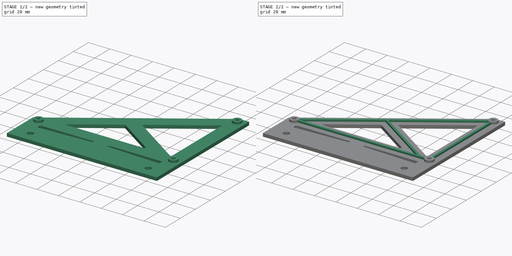
[diagram: build sequence overview — one tinted view per stage of 2, left to right]
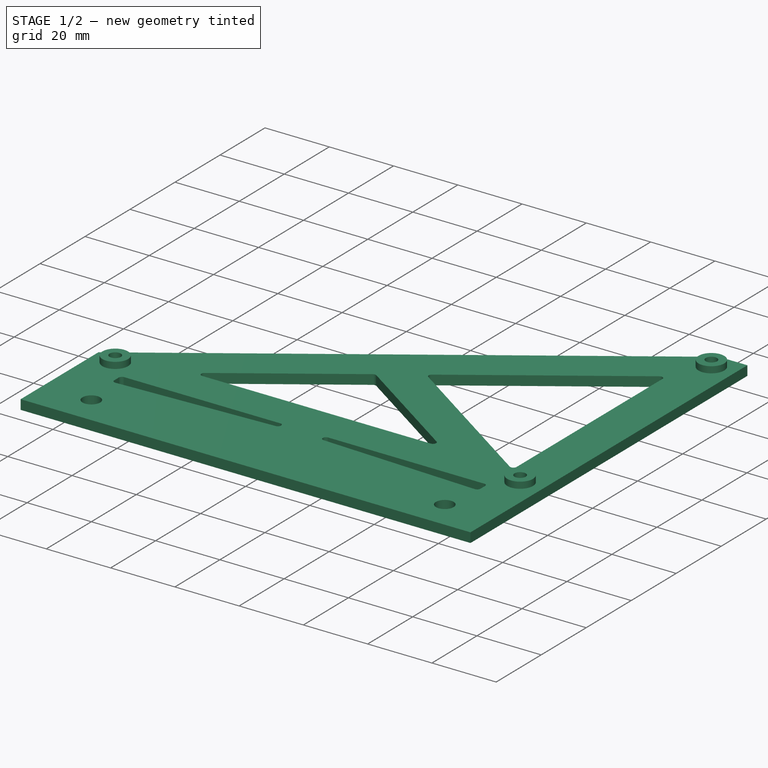
[diagram: stage 1 of 2 — iso view after this stage's code; geometry added in this stage tinted green]
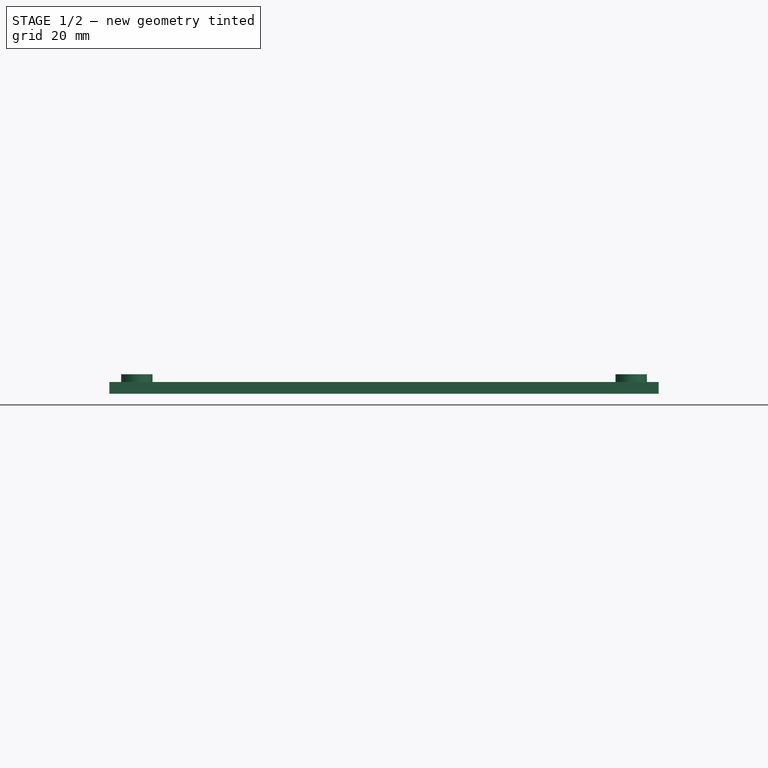
[diagram: stage 1 of 2 — front view after this stage's code; geometry added in this stage tinted green]
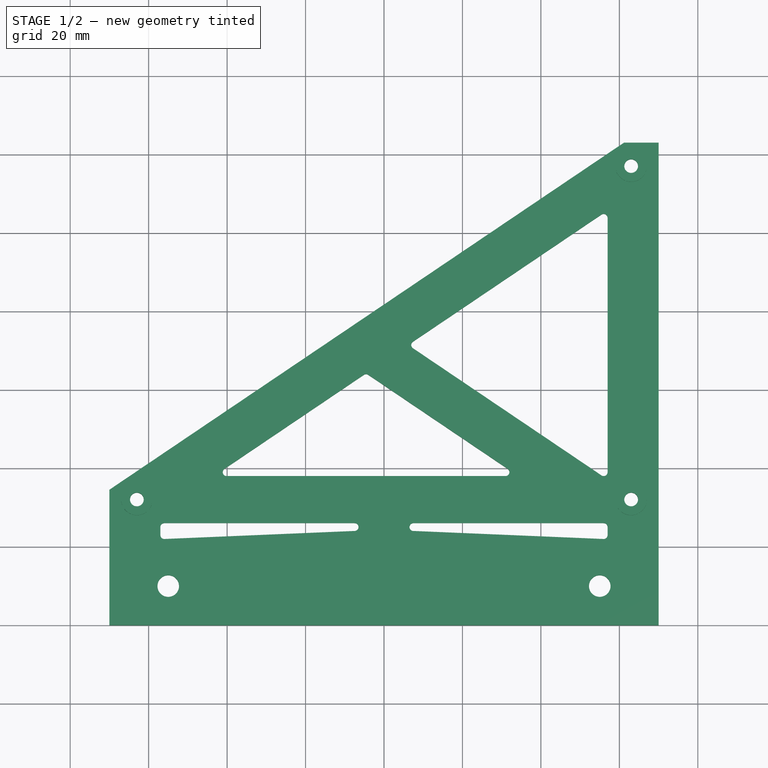
[diagram: stage 1 of 2 — top view after this stage's code; geometry added in this stage tinted green]
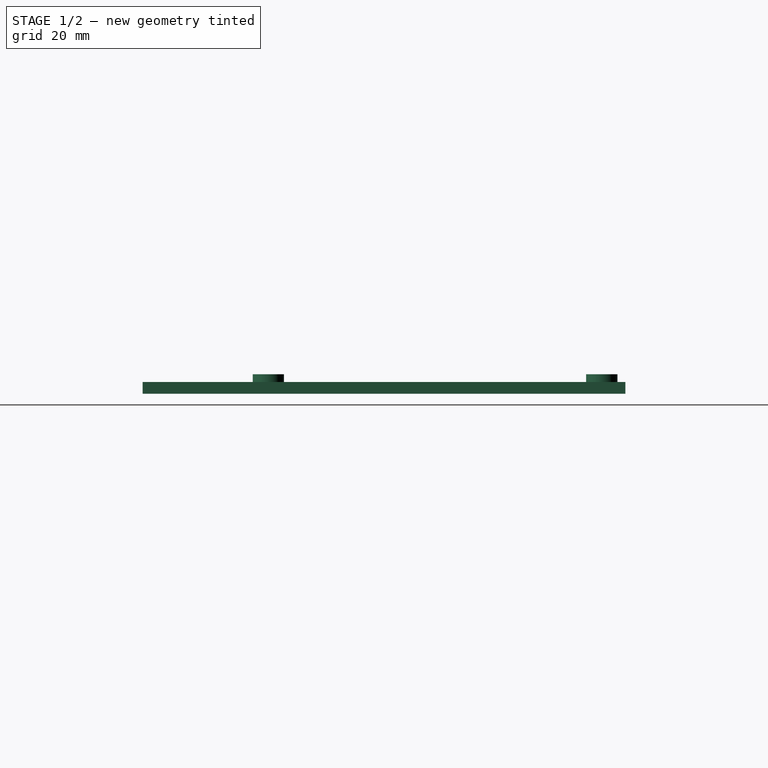
[diagram: stage 1 of 2 — right view after this stage's code; geometry added in this stage tinted green]
FCSTD DOCUMENT  (FreeCAD 0.18R4 (GitTag))
Label: _Electr_PSU-Mount
License: All rights reserved
LicenseURL: http://en.wikipedia.org/wiki/All_rights_reserved
objects: Sketcher::SketchObject×3, PartDesign::Pad×3, PartDesign::Body×1
note: 10 computed .brp shape members not serialized (recipe doc carries the construction recipe); baked Part::Feature solids carry a one-line shape summary decoded from their .brp

FEATURE [Sketcher::SketchObject] Sketch
  MapMode = 5
  Support = -> [XY_Plane066]
  expr: Constraints[106] = Constraints[71] / 2
  expr: Constraints[103] = Constraints[71]
  expr: Constraints[99] = Constraints[71] / 2
  sketch-geometry (43):
    g0: LineSegment StartX=-70 StartY=14.5654 StartZ=0 EndX=-70 EndY=-20 EndZ=0
    g1: LineSegment StartX=-70 StartY=-20 StartZ=0 EndX=70 EndY=-20 EndZ=0
    g2: LineSegment StartX=70 StartY=-20 StartZ=0 EndX=70 EndY=103.05 EndZ=0
    g3: LineSegment StartX=61.1654 StartY=103.05 StartZ=0 EndX=-70 EndY=14.5654 EndZ=0
    g4: Circle CenterX=-63 CenterY=12.05 CenterZ=0 NormalX=0 NormalY=0 NormalZ=1 AngleXU=0 Radius=1.75
    g5: Circle CenterX=-55 CenterY=-10 CenterZ=0 NormalX=0 NormalY=0 NormalZ=1 AngleXU=0 Radius=2.75
    g6: Circle CenterX=55 CenterY=-10 CenterZ=0 NormalX=0 NormalY=0 NormalZ=1 AngleXU=0 Radius=2.75
    g7: Circle CenterX=63 CenterY=12.05 CenterZ=0 NormalX=0 NormalY=0 NormalZ=1 AngleXU=0 Radius=1.75
    g8: Circle CenterX=63 CenterY=97.05 CenterZ=0 NormalX=0 NormalY=0 NormalZ=1 AngleXU=0 Radius=1.75
    g9: LineSegment StartX=-56 StartY=6.05 StartZ=0 EndX=-7.5 EndY=6.05 EndZ=0
    g10: LineSegment StartX=-7.45777 StartY=4.05089 StartZ=0 EndX=-55.9578 EndY=2.00089 EndZ=0
    g11: LineSegment StartX=-57 StartY=3 StartZ=0 EndX=-57 EndY=5.05 EndZ=0
    g12: LineSegment StartX=56 StartY=6.05 StartZ=0 EndX=7.5 EndY=6.05 EndZ=0
    g13: LineSegment StartX=7.45777 StartY=4.05089 StartZ=0 EndX=55.9578 EndY=2.00089 EndZ=0
    g14: LineSegment StartX=57 StartY=3 StartZ=0 EndX=57 EndY=5.05 EndZ=0
    g15: ArcOfCircle CenterX=-56 CenterY=5.05 CenterZ=0 NormalX=0 NormalY=0 NormalZ=1 AngleXU=0 Radius=1 StartAngle=1.5708 EndAngle=3.14159
    g16: ArcOfCircle CenterX=-56 CenterY=3 CenterZ=0 NormalX=0 NormalY=0 NormalZ=1 AngleXU=0 Radius=1 StartAngle=3.14159 EndAngle=4.75463
    g17: ArcOfCircle CenterX=-7.5 CenterY=5.05 CenterZ=0 NormalX=0 NormalY=0 NormalZ=1 AngleXU=0 Radius=1 StartAngle=4.75463 EndAngle=7.85398
    g18: ArcOfCircle CenterX=7.5 CenterY=5.05 CenterZ=0 NormalX=0 NormalY=0 NormalZ=1 AngleXU=0 Radius=1 StartAngle=1.5708 EndAngle=4.67015
    g19: ArcOfCircle CenterX=56 CenterY=5.05 CenterZ=0 NormalX=0 NormalY=0 NormalZ=1 AngleXU=0 Radius=1 StartAngle=0 EndAngle=1.5708
    g20: ArcOfCircle CenterX=56 CenterY=3 CenterZ=0 NormalX=0 NormalY=0 NormalZ=1 AngleXU=0 Radius=1 StartAngle=4.67015 EndAngle=6.28319
    g21: LineSegment [constr] StartX=-70 StartY=2 StartZ=0 EndX=70 EndY=2 EndZ=0
    g22: LineSegment [constr] StartX=-63 StartY=12.05 StartZ=0 EndX=63 EndY=12.05 EndZ=0
    g23: LineSegment [constr] StartX=-63 StartY=12.05 StartZ=0 EndX=63 EndY=97.05 EndZ=0
    g24: LineSegment [constr] StartX=63 StartY=97.05 StartZ=0 EndX=63 EndY=12.05 EndZ=0
    g25: LineSegment StartX=61.1654 StartY=103.05 StartZ=0 EndX=70 EndY=103.05 EndZ=0
    g26: LineSegment StartX=55.4408 StartY=84.7129 StartZ=0 EndX=7.38741 EndY=52.2959 EndZ=0
    g27: LineSegment StartX=7.38741 StartY=50.6379 StartZ=0 EndX=55.4408 EndY=18.221 EndZ=0
    g28: LineSegment StartX=57 StartY=19.05 StartZ=0 EndX=57 EndY=83.8839 EndZ=0
    g29: LineSegment StartX=-40.6659 StartY=19.879 StartZ=0 EndX=-5.12943 EndY=43.852 EndZ=0
    g30: LineSegment StartX=-4.01094 StartY=43.852 StartZ=0 EndX=31.5256 EndY=19.879 EndZ=0
    g31: LineSegment StartX=30.9663 StartY=18.05 StartZ=0 EndX=-40.1067 EndY=18.05 EndZ=0
    g32: LineSegment [constr] StartX=-5.12943 StartY=43.852 StartZ=0 EndX=7.38741 EndY=52.2959 EndZ=0
    g33: LineSegment [constr] StartX=-3.35548 StartY=59.524 StartZ=0 EndX=3.35548 EndY=49.576 EndZ=0
    g34: GeomPoint X=0 Y=54.55 Z=0
    g35: ArcOfCircle CenterX=56 CenterY=83.8839 CenterZ=0 NormalX=0 NormalY=0 NormalZ=1 AngleXU=0 Radius=1 StartAngle=-4.4e-15 EndAngle=2.16427
    g36: ArcOfCircle CenterX=7.94665 CenterY=51.4669 CenterZ=0 NormalX=0 NormalY=0 NormalZ=1 AngleXU=0 Radius=1 StartAngle=2.16427 EndAngle=4.11891
    g37: ArcOfCircle CenterX=56 CenterY=19.05 CenterZ=0 NormalX=0 NormalY=0 NormalZ=1 AngleXU=0 Radius=1 StartAngle=4.11891 EndAngle=6.28319
    g38: ArcOfCircle CenterX=30.9663 CenterY=19.05 CenterZ=0 NormalX=0 NormalY=0 NormalZ=1 AngleXU=0 Radius=1 StartAngle=4.71239 EndAngle=7.2605
    g39: ArcOfCircle CenterX=-40.1067 CenterY=19.05 CenterZ=0 NormalX=0 NormalY=0 NormalZ=1 AngleXU=0 Radius=1 StartAngle=2.16427 EndAngle=4.71239
    g40: ArcOfCircle CenterX=-4.57018 CenterY=43.023 CenterZ=0 NormalX=0 NormalY=0 NormalZ=1 AngleXU=0 Radius=1 StartAngle=0.977319 EndAngle=2.16427
    g41: LineSegment [constr] StartX=57 StartY=51.4669 StartZ=0 EndX=63 EndY=51.4669 EndZ=0
    g42: LineSegment [constr] StartX=31.5256 StartY=19.879 StartZ=0 EndX=38.2365 EndY=29.827 EndZ=0
  constraints (109):
    c: Vertical(g0)
    c: Coincident(g0,g1)
    c: Coincident(g1,g2)
    c: Coincident(g3,g0)
    c: DistanceX(g1,g1) = 140
    c: Symmetric(g1,g0,g-2)
    c: DistanceY(g7,g8) = 85
    c: Horizontal(g4,g7)
    c: DistanceX(g4,g7) = 126
    c: Equal(g4,g7)
    c: Equal(g7,g8)
    c: Diameter(g8) = 3.5
    c: Symmetric(g5,g6,g-2)
    c: DistanceX(g5,g6) = 110
    c: Vertical(g7,g8)
    c: DistanceY(g0,g-1) = 20
    c: Horizontal(g9)
    c: Vertical(g11)
    c: Horizontal(g9,g12)
    c: Horizontal(g12)
    c: Vertical(g14)
    c: Tangent(g11,g15) = 1.5708
    c: Tangent(g9,g15) = 1.5708
    c: Tangent(g11,g16) = 1.5708
    c: Tangent(g10,g16) = 1.5708
    c: Tangent(g10,g17) = 1.5708
    c: Tangent(g9,g17) = 1.5708
    c: Tangent(g13,g18) = -1.5708
    c: Tangent(g12,g18) = -1.5708
    c: Tangent(g12,g19) = -1.5708
    c: Tangent(g14,g19) = -1.5708
    c: Tangent(g14,g20) = -1.5708
    c: Tangent(g13,g20) = -1.5708
    c: Equal(g19,g20)
    c: Equal(g20,g18)
    c: PointOnObject(g21,g0)
    c: PointOnObject(g21,g2)
    c: Horizontal(g21)
    c: DistanceY(g-1,g21) = 2
    c: Symmetric(g17,g18,g-2)
    c: Symmetric(g15,g19,g-2)
    c: Symmetric(g16,g20,g-2)
    c: Tangent(g16,g21)
    c: DistanceX(g17,g18) = 15
    c: Diameter(g5) = 5.5
    c: Equal(g5,g6)
    c: Vertical(g2)
    c: DistanceY(g21,g7) = 10.05
    c: Coincident(g22,g4)
    c: Coincident(g22,g7)
    c: Coincident(g23,g4)
    c: Coincident(g23,g8)
    c: Coincident(g24,g8)
    c: Coincident(g24,g7)
    c: Coincident(g25,g3)
    c: Coincident(g25,g2)
    c: Horizontal(g25)
    c: Parallel(g23,g3)
    c: DistanceY(g0,g5) = 10
    c: DistanceY(g9,g4) = 6
    c: DistanceX(g8,g2) = 7
    c: DistanceY(g8,g2) = 6
    c: Radius(g18) = 1
    c: Vertical(g28)
    c: Horizontal(g31)
    c: Parallel(g3,g29)
    c: PointOnObject(g33,g3)
    c: PointOnObject(g33,g32)
    c: PointOnObject(g34,g33)
    c: PointOnObject(g34,g-2)
    c: PointOnObject(g34,g23)
    c: Distance(g33) = 12
    c: Tangent(g26,g35) = -1.5708
    c: Tangent(g28,g35) = -1.5708
    c: Tangent(g26,g36) = -1.5708
    c: Tangent(g27,g36) = -1.5708
    c: Tangent(g27,g37) = -1.5708
    c: Tangent(g28,g37) = -1.5708
    c: Tangent(g30,g38) = 1.5708
    c: Tangent(g31,g38) = 1.5708
    c: Tangent(g31,g39) = 1.5708
    c: Tangent(g29,g39) = 1.5708
    c: Tangent(g29,g40) = 1.5708
    c: Tangent(g30,g40) = 1.5708
    c: Coincident(g32,g26)
    c: Coincident(g32,g29)
    c: Equal(g40,g39)
    c: Equal(g39,g38)
    c: Equal(g38,g37)
    c: Equal(g37,g36)
    c: Equal(g36,g35)
    c: Equal(g35,g19)
    c: Tangent(g26,g32)
    c: Tangent(g32,g29)
    c: Symmetric(g33,g33,g23)
    c: PointOnObject(g41,g28)
    c: PointOnObject(g41,g24)
    c: Horizontal(g41)
    c: Horizontal(g41,g36)
    c: DistanceX(g41,g41) = 6
    c: Coincident(g42,g30)
    c: PointOnObject(g42,g27)
    c: Perpendicular(g42,g27)
    c: Distance(g42) = 12
    c: Equal(g27,g26)
    c: Parallel(g27,g30)
    c: DistanceY(g4,g31) = 6
    c: Tangent(g37,g31)
    c: Vertical(g19,g37)
FEATURE [PartDesign::Pad] Pad
  Length = 3
  Length2 = 100
  Profile = -> Sketch
  Type = 0
FEATURE [Sketcher::SketchObject] Sketch001
  AttachmentOffset = pos=(0,0,3) rot=(0,0,1;0rad)
  ExternalGeometry = -> [Sketch]
  MapMode = 5
  Placement = pos=(0,0,3) rot=(0,0,1;0rad)
  Support = -> [XY_Plane066]
  expr: AttachmentOffset.Base.z = Pad.Length
  sketch-geometry (6):
    g0: Circle CenterX=-63 CenterY=12.05 CenterZ=0 NormalX=0 NormalY=0 NormalZ=1 AngleXU=0 Radius=4
    g1: Circle CenterX=63 CenterY=12.05 CenterZ=0 NormalX=0 NormalY=0 NormalZ=1 AngleXU=0 Radius=4
    g2: Circle CenterX=63 CenterY=97.05 CenterZ=0 NormalX=0 NormalY=0 NormalZ=1 AngleXU=0 Radius=4
    g3: Circle CenterX=-63 CenterY=12.05 CenterZ=0 NormalX=0 NormalY=0 NormalZ=1 AngleXU=0 Radius=1.75
    g4: Circle CenterX=63 CenterY=97.05 CenterZ=0 NormalX=0 NormalY=0 NormalZ=1 AngleXU=0 Radius=1.75
    g5: Circle CenterX=63 CenterY=12.05 CenterZ=0 NormalX=0 NormalY=0 NormalZ=1 AngleXU=0 Radius=1.75
  constraints (12):
    c: Coincident(g0,g-3)
    c: Coincident(g1,g-4)
    c: Coincident(g2,g-5)
    c: Equal(g2,g1)
    c: Equal(g1,g0)
    c: Diameter(g2) = 8
    c: Coincident(g3,g0)
    c: Coincident(g4,g2)
    c: Coincident(g5,g1)
    c: Equal(g-4,g5)
    c: Equal(g3,g-3)
    c: Equal(g4,g-5)
FEATURE [PartDesign::Pad] Pad001
  BaseFeature = -> Pad
  Length = 2
  Length2 = 100
  Profile = -> Sketch001
  Type = 0
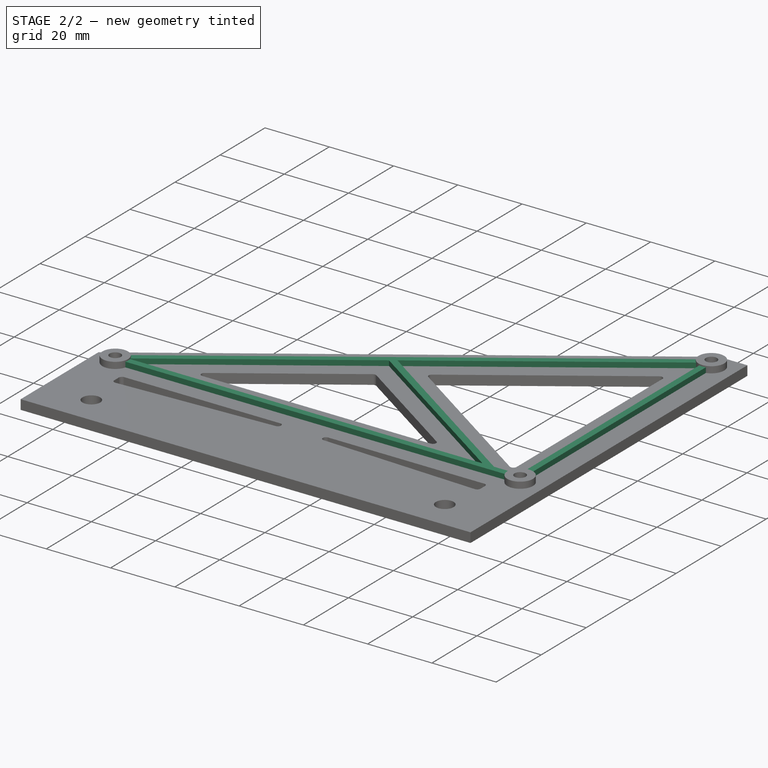
[diagram: stage 2 of 2 — iso view after this stage's code; geometry added in this stage tinted green]
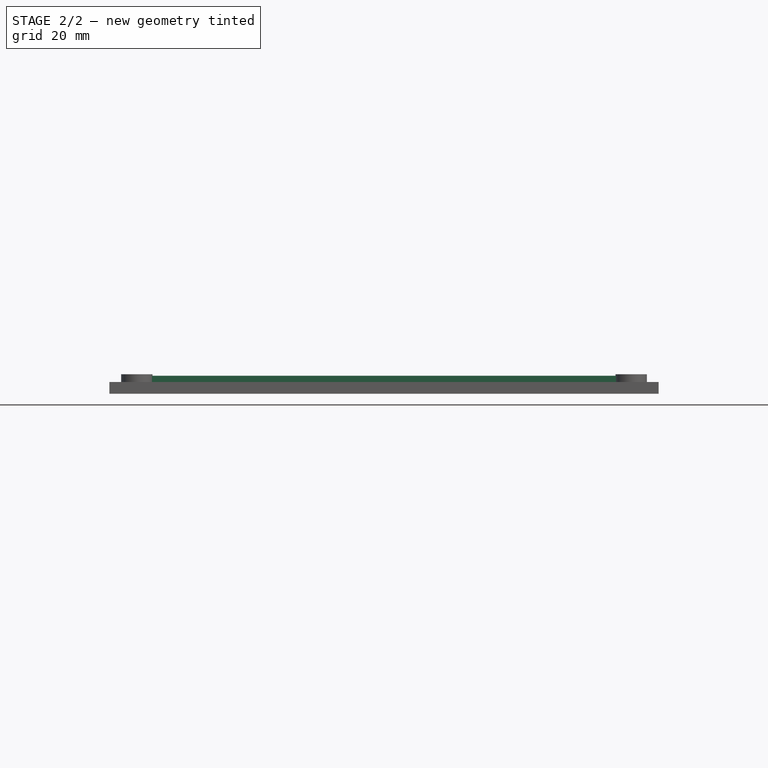
[diagram: stage 2 of 2 — front view after this stage's code; geometry added in this stage tinted green]
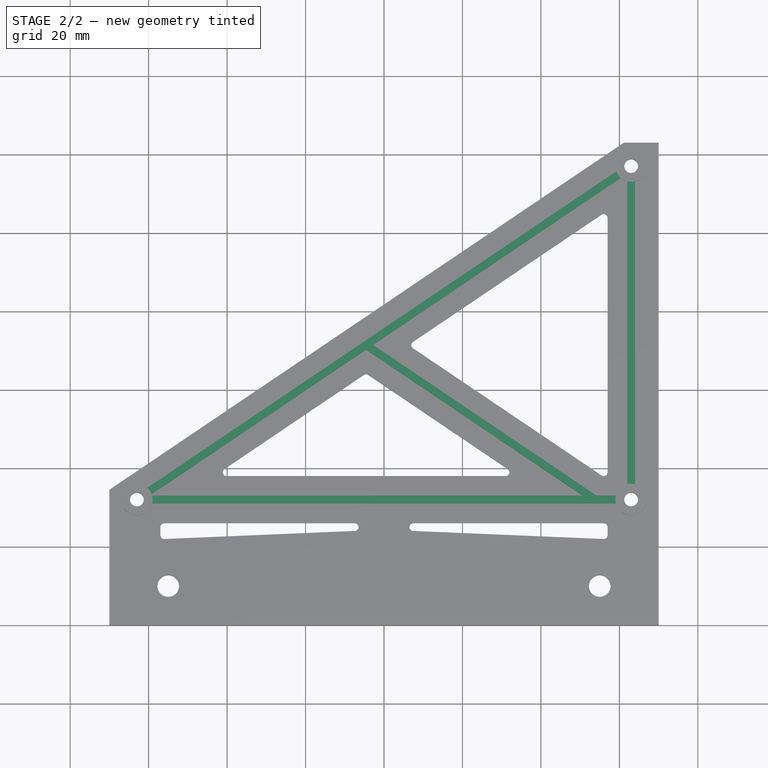
[diagram: stage 2 of 2 — top view after this stage's code; geometry added in this stage tinted green]
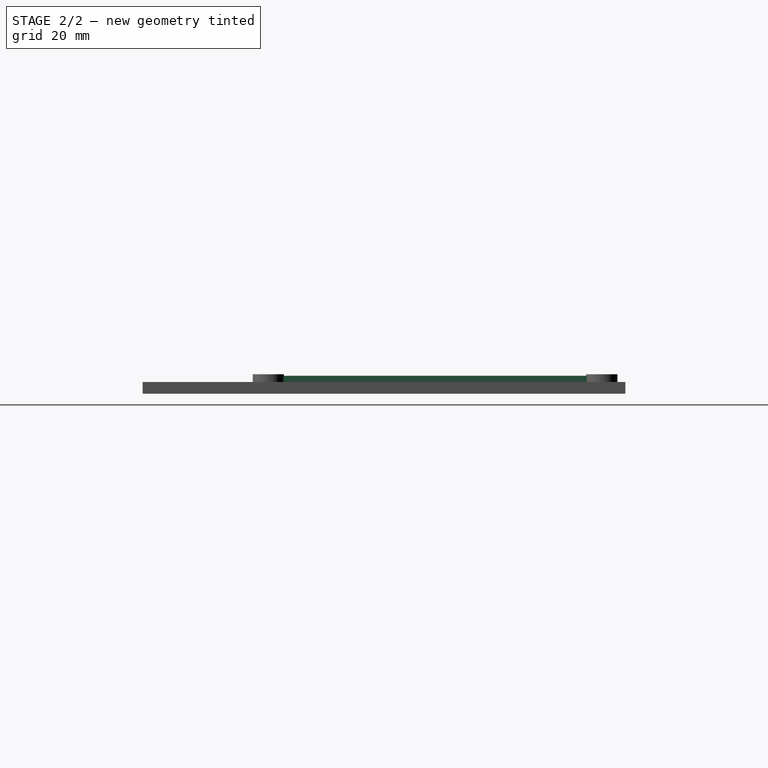
[diagram: stage 2 of 2 — right view after this stage's code; geometry added in this stage tinted green]
FEATURE [Sketcher::SketchObject] Sketch002
  AttachmentOffset = pos=(0,0,3) rot=(0,0,1;0rad)
  ExternalGeometry = -> [Sketch]
  MapMode = 5
  Placement = pos=(0,0,3) rot=(0,0,1;0rad)
  Support = -> [XY_Plane066]
  expr: AttachmentOffset.Base.z = Pad.Length
  expr: Constraints[74] = Constraints[35]
  expr: Constraints[55] = Constraints[35]
  expr: Constraints[41] = Constraints[36]
  expr: Constraints[22] = Sketch001.Constraints[5]
  expr: Constraints[40] = Constraints[36]
  expr: Constraints[36] = Constraints[35]
  sketch-geometry (28):
    g0: LineSegment [constr] StartX=63 StartY=97.05 StartZ=0 EndX=-63 EndY=12.05 EndZ=0
    g1: LineSegment [constr] StartX=63 StartY=12.05 StartZ=0 EndX=63 EndY=97.05 EndZ=0
    g2: LineSegment [constr] StartX=63 StartY=12.05 StartZ=0 EndX=-63 EndY=12.05 EndZ=0
    g3: LineSegment [constr] StartX=-4.57018 StartY=51.4669 StartZ=0 EndX=53.8596 EndY=12.05 EndZ=0
    g4: LineSegment [constr] StartX=31.5256 StartY=19.879 StartZ=0 EndX=38.2365 EndY=29.827 EndZ=0
    g5: LineSegment StartX=60.3485 StartY=94.055 StartZ=0 EndX=-2.78206 EndY=51.4669 EndZ=0
    g6: LineSegment StartX=-2.78206 StartY=51.4669 StartZ=0 EndX=54.1654 EndY=13.05 EndZ=0
    g7: LineSegment StartX=54.1654 StartY=13.05 StartZ=0 EndX=59.127 EndY=13.05 EndZ=0
    g8: LineSegment StartX=62 StartY=15.923 StartZ=0 EndX=62 EndY=93.177 EndZ=0
    g9: LineSegment StartX=64 StartY=94.5364 StartZ=0 EndX=64 EndY=15.5249 EndZ=0
    g10: Circle [constr] CenterX=63 CenterY=12.05 CenterZ=0 NormalX=0 NormalY=0 NormalZ=1 AngleXU=0 Radius=4
    g11: Circle [constr] CenterX=-63 CenterY=12.05 CenterZ=0 NormalX=0 NormalY=0 NormalZ=1 AngleXU=0 Radius=4
    g12: Circle [constr] CenterX=63 CenterY=97.05 CenterZ=0 NormalX=0 NormalY=0 NormalZ=1 AngleXU=0 Radius=4
    g13: LineSegment StartX=60.357 StartY=96.4733 StartZ=0 EndX=-61.7887 EndY=14.0734 EndZ=0
    g14: LineSegment StartX=-60.8643 StartY=11.05 StartZ=0 EndX=59.5251 EndY=11.05 EndZ=0
    g15: LineSegment StartX=60.357 StartY=96.4733 StartZ=0 EndX=64 EndY=94.5364 EndZ=0
    g16: LineSegment StartX=-61.7887 StartY=14.0734 StartZ=0 EndX=-60.8643 EndY=11.05 EndZ=0
    g17: LineSegment StartX=59.5251 StartY=11.05 StartZ=0 EndX=64 EndY=15.5249 EndZ=0
    g18: LineSegment StartX=-4.57018 StartY=50.2607 StartZ=0 EndX=-59.23 EndY=13.387 EndZ=0
    g19: LineSegment StartX=-59.127 StartY=13.05 StartZ=0 EndX=50.5892 EndY=13.05 EndZ=0
    g20: LineSegment StartX=50.5892 StartY=13.05 StartZ=0 EndX=-4.57018 EndY=50.2607 EndZ=0
    g21: LineSegment StartX=62 StartY=15.923 StartZ=0 EndX=59.127 EndY=13.05 EndZ=0
    g22: LineSegment StartX=60.3485 StartY=94.055 StartZ=0 EndX=62 EndY=93.177 EndZ=0
    g23: LineSegment [constr] StartX=0.559247 StartY=54.9273 StartZ=0 EndX=0 EndY=55.7563 EndZ=0
    g24: LineSegment [constr] StartX=0.559247 StartY=54.9273 StartZ=0 EndX=1.11849 EndY=54.0983 EndZ=0
    g25: LineSegment StartX=-59.23 StartY=13.387 StartZ=0 EndX=-59.127 EndY=13.05 EndZ=0
    g26: LineSegment [constr] StartX=-2.78206 StartY=51.4669 StartZ=0 EndX=-3.34131 EndY=50.6379 EndZ=0
    g27: LineSegment [constr] StartX=-3.34131 StartY=50.6379 StartZ=0 EndX=-3.90056 EndY=49.8089 EndZ=0
  constraints (79):
    c: Coincident(g0,g-3)
    c: Coincident(g0,g-5)
    c: Coincident(g1,g0)
    c: Vertical(g1)
    c: Coincident(g2,g1)
    c: Coincident(g2,g0)
    c: Horizontal(g2)
    c: PointOnObject(g3,g0)
    c: PointOnObject(g3,g2)
    c: Coincident(g4,g-6)
    c: PointOnObject(g4,g-7)
    c: Symmetric(g4,g4,g3)
    c: Coincident(g5,g6)
    c: Coincident(g6,g7)
    c: Horizontal(g7)
    c: Vertical(g8)
    c: Vertical(g9)
    c: Coincident(g10,g1)
    c: Coincident(g11,g0)
    c: Coincident(g12,g0)
    c: Equal(g11,g10)
    c: Equal(g10,g12)
    c: Diameter(g12) = 8
    c: Horizontal(g14)
    c: Coincident(g15,g9)
    c: Coincident(g16,g13)
    c: Coincident(g16,g14)
    c: Coincident(g17,g14)
    c: Coincident(g17,g9)
    c: Coincident(g13,g15)
    c: Tangent(g17,g-4)
    c: Tangent(g16,g-5)
    c: Horizontal(g19)
    c: Coincident(g19,g20)
    c: Coincident(g20,g18)
    c: DistanceY(g14,g1) = 1
    c: DistanceX(g1,g9) = 1
    c: Angle(g17,g14) = 2.35619
    c: Coincident(g21,g8)
    c: Coincident(g21,g7)
    c: DistanceY(g1,g7) = 1
    c: DistanceX(g8,g1) = 1
    c: PointOnObject(g7,g10)
    c: PointOnObject(g8,g10)
    c: Coincident(g22,g5)
    c: Coincident(g22,g8)
    c: PointOnObject(g5,g12)
    c: PointOnObject(g8,g12)
    c: Horizontal(g6,g19)
    c: Tangent(g5,g18)
    c: Perpendicular(g-7,g4)
    c: PointOnObject(g23,g0)
    c: PointOnObject(g23,g13)
    c: PointOnObject(g23,g-2)
    c: Perpendicular(g23,g13)
    c: Distance(g23) = 1
    c: Parallel(g13,g0)
    c: Coincident(g24,g23)
    c: PointOnObject(g24,g5)
    c: Perpendicular(g24,g5)
    c: Equal(g23,g24)
    c: Parallel(g0,g5)
    c: Parallel(g22,g15)
    c: Tangent(g-3,g15)
    c: Coincident(g25,g18)
    c: Coincident(g25,g19)
    c: Coincident(g26,g5)
    c: PointOnObject(g26,g3)
    c: Coincident(g27,g26)
    c: PointOnObject(g27,g20)
    c: Perpendicular(g27,g20)
    c: Perpendicular(g26,g6)
    c: Equal(g27,g26)
    c: Parallel(g3,g6)
    c: Distance(g27,g26) = 1
    c: Parallel(g3,g20)
    c: PointOnObject(g19,g11)
    c: PointOnObject(g18,g11)
    c: Parallel(g25,g16)
FEATURE [PartDesign::Pad] Pad002
  BaseFeature = -> Pad001
  Length = 1.6
  Length2 = 100
  Profile = -> Sketch002
  Type = 0
FEATURE [PartDesign::Body] Body  label="PSU-Mount"
  Group = -> [Sketch,Pad,Sketch001,Pad001,Sketch002,Pad002]
  Origin = -> Origin066
  Tip = -> Pad002
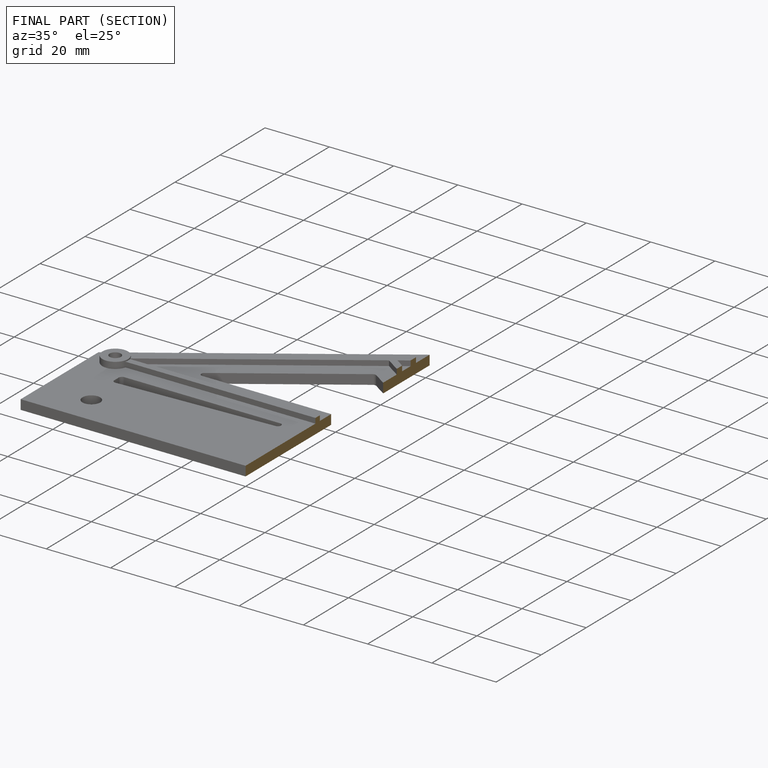
[diagram: finished part — half-section view (interior)]
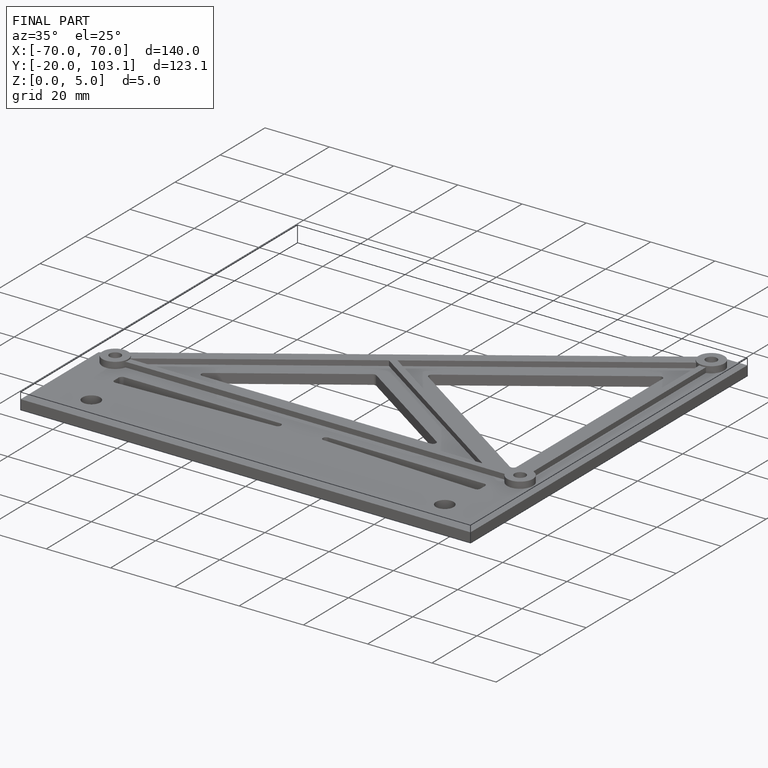
[diagram: finished part — iso view with bounding-box wireframe]
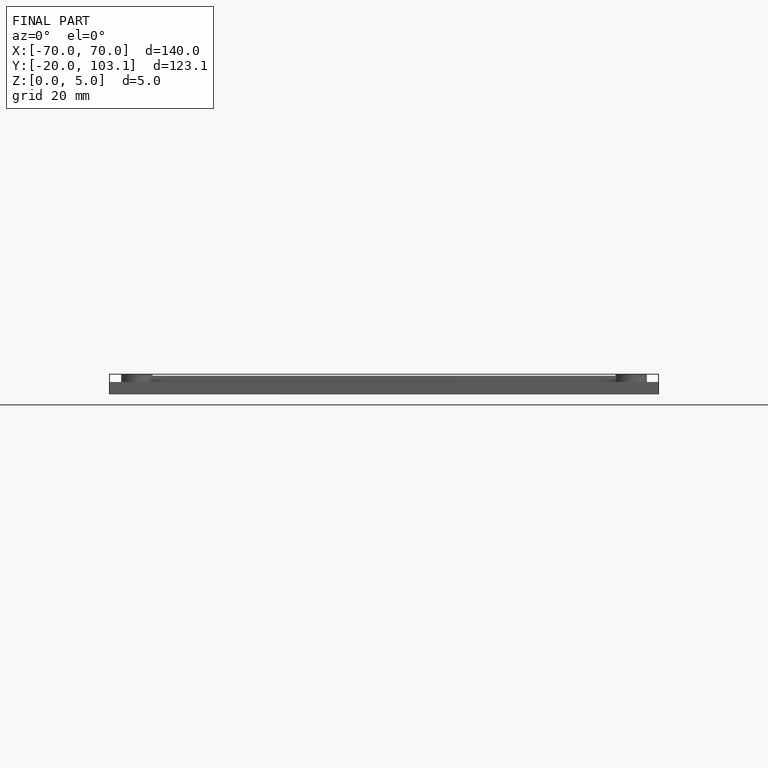
[diagram: finished part — front view with bounding-box wireframe]
